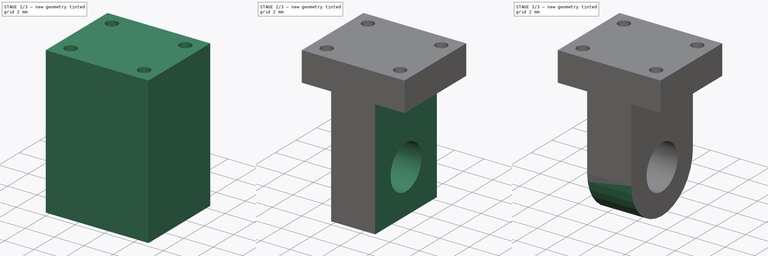
[diagram: build sequence overview — one tinted view per stage of 3, left to right]
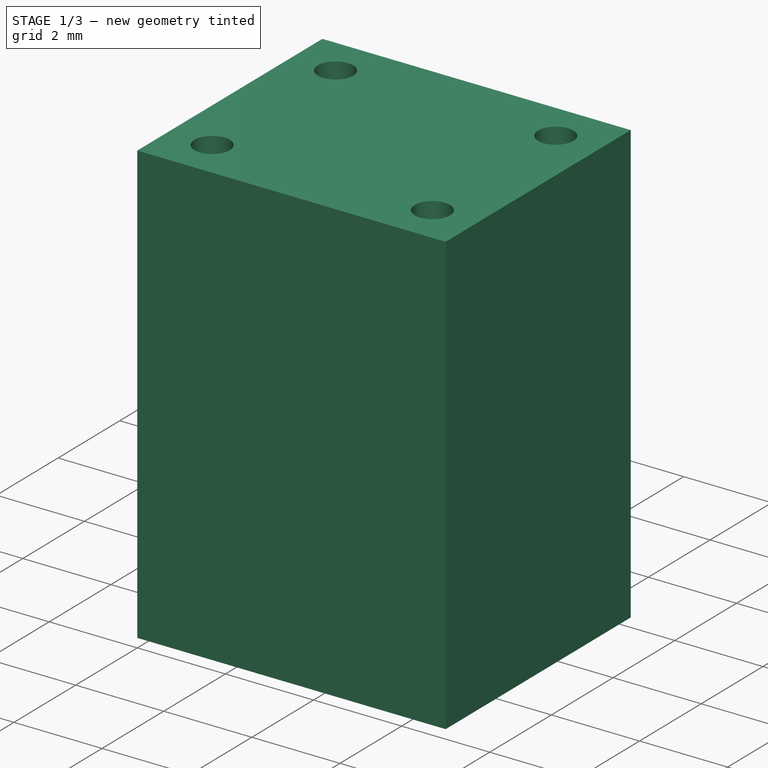
[diagram: stage 1 of 3 — iso view after this stage's code; geometry added in this stage tinted green]
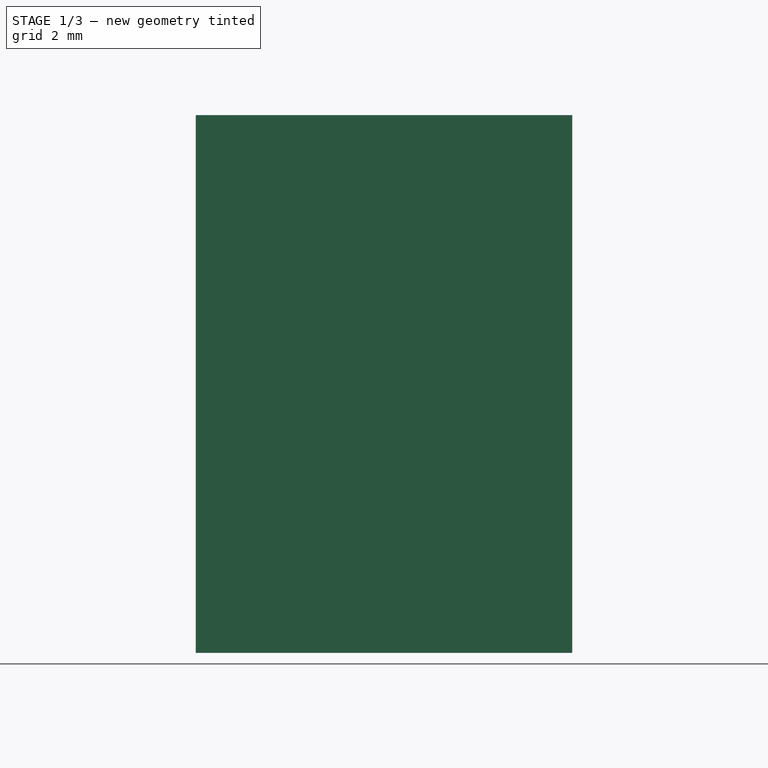
[diagram: stage 1 of 3 — front view after this stage's code; geometry added in this stage tinted green]
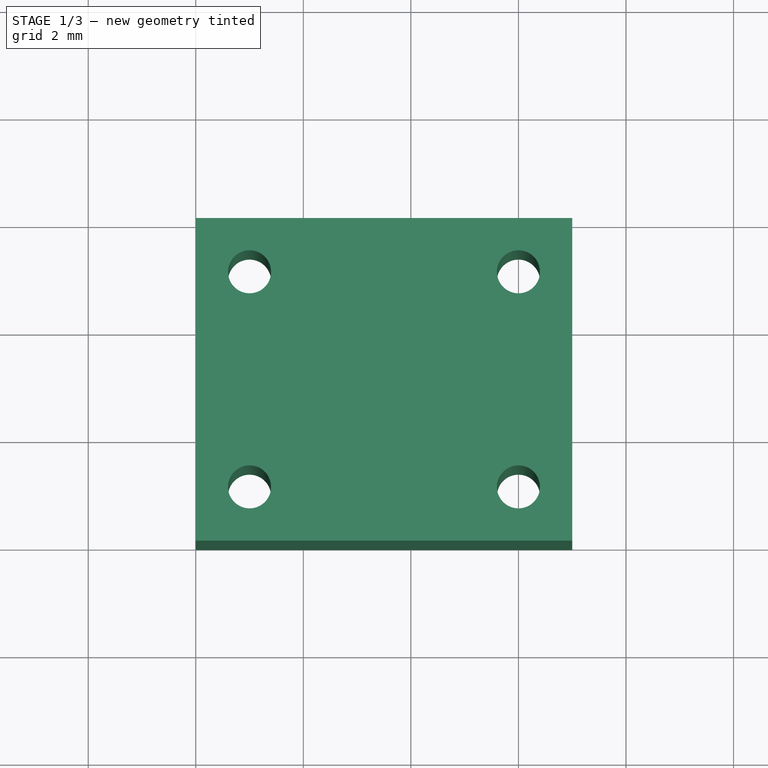
[diagram: stage 1 of 3 — top view after this stage's code; geometry added in this stage tinted green]
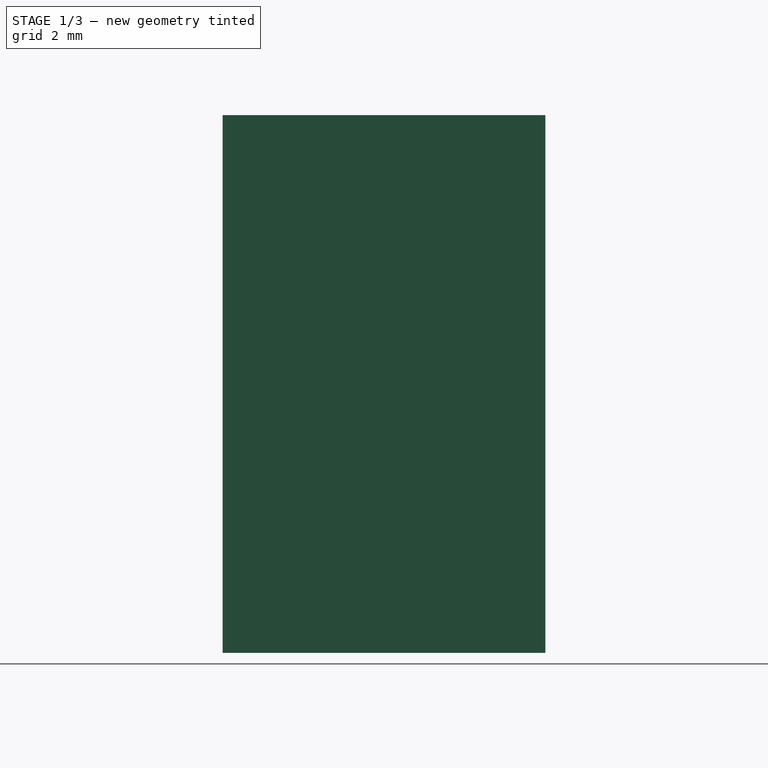
[diagram: stage 1 of 3 — right view after this stage's code; geometry added in this stage tinted green]
FCSTD DOCUMENT  (FreeCAD 0.17R13528 (Git))
Label: kupplungsstück
License: All rights reserved
LicenseURL: http://en.wikipedia.org/wiki/All_rights_reserved
objects: Sketcher::SketchObject×4, PartDesign::Pocket×4, PartDesign::SubtractiveBox×2, PartDesign::AdditiveBox×1, PartDesign::Body×1
note: 19 computed .brp shape members not serialized (recipe doc carries the construction recipe); baked Part::Feature solids carry a one-line shape summary decoded from their .brp

FEATURE [PartDesign::AdditiveBox] Box
  AttacherType = Attacher::AttachEngine3D
  Height = 10
  Length = 7
  MapMode = 5
  Support = -> [XY_Plane]
  Width = 6
FEATURE [Sketcher::SketchObject] Sketch
  MapMode = 5
  Placement = pos=(0,0,10) rot=(0,0,1;0rad)
  Support = -> [Box]
  sketch-geometry (4):
    g0: Circle CenterX=1 CenterY=1 CenterZ=0 NormalX=0 NormalY=0 NormalZ=1 AngleXU=0 Radius=0.4
    g1: Circle CenterX=1 CenterY=5 CenterZ=0 NormalX=0 NormalY=0 NormalZ=1 AngleXU=0 Radius=0.4
    g2: Circle CenterX=6 CenterY=1 CenterZ=0 NormalX=0 NormalY=0 NormalZ=1 AngleXU=0 Radius=0.4
    g3: Circle CenterX=6 CenterY=5 CenterZ=0 NormalX=0 NormalY=0 NormalZ=1 AngleXU=0 Radius=0.4
  constraints (12):
    c: Radius(g0) = 0.4
    c: DistanceX(g-1,g0) = 1
    c: DistanceY(g0,g-1) = -1
    c: Radius(g1) = 0.4
    c: DistanceX(g1,g-1) = -1
    c: DistanceY(g0,g1) = 4
    c: Radius(g2) = 0.4
    c: DistanceX(g0,g2) = 5
    c: DistanceY(g-1,g2) = 1
    c: Radius(g3) = 0.4
    c: DistanceY(g2,g3) = 4
    c: DistanceX(g1,g3) = 5
FEATURE [PartDesign::Pocket] Pocket
  BaseFeature = -> Box
  Length = 5
  Length2 = 100
  Profile = -> Sketch
  Type = 1
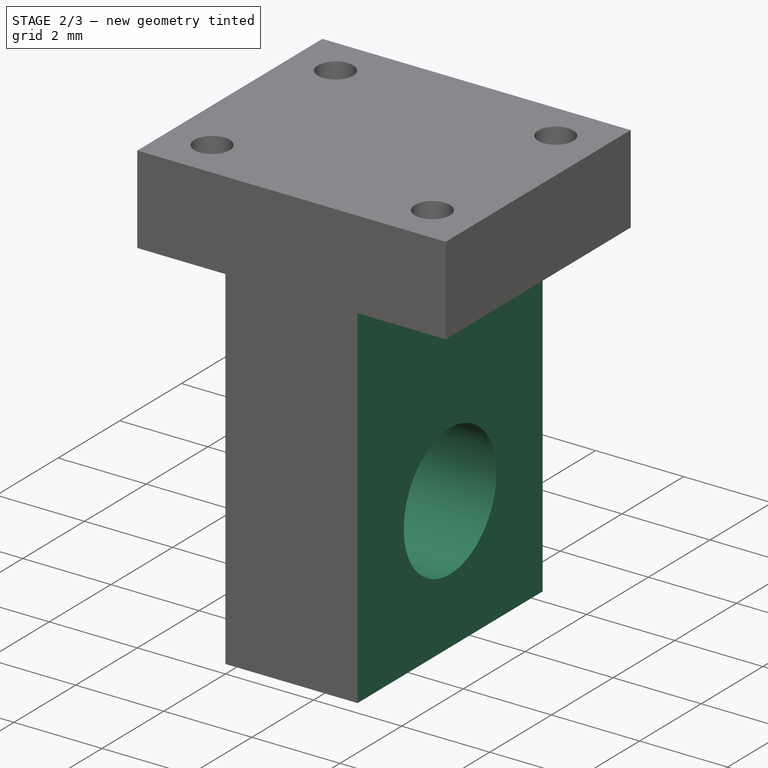
[diagram: stage 2 of 3 — iso view after this stage's code; geometry added in this stage tinted green]
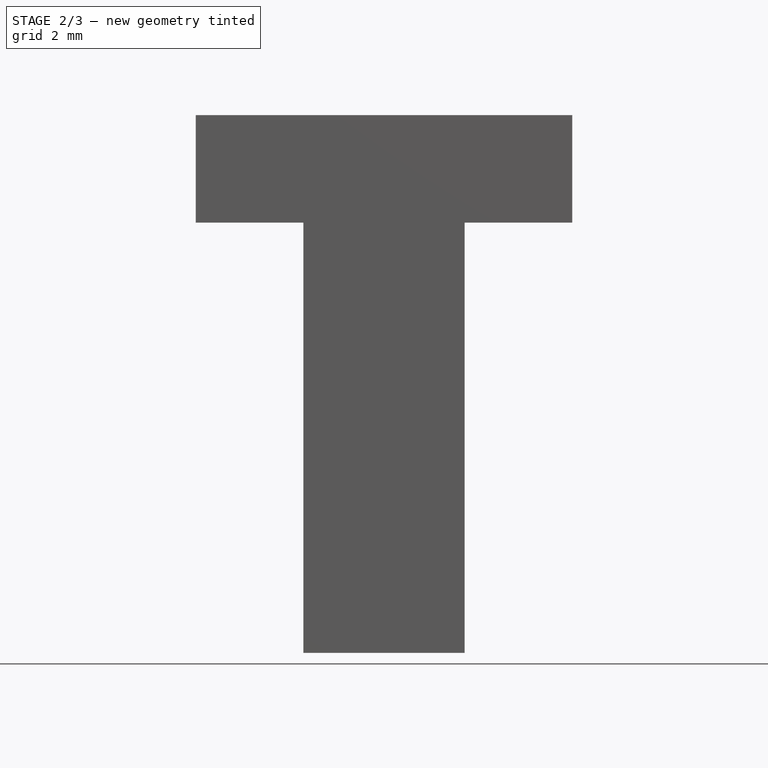
[diagram: stage 2 of 3 — front view after this stage's code; geometry added in this stage tinted green]
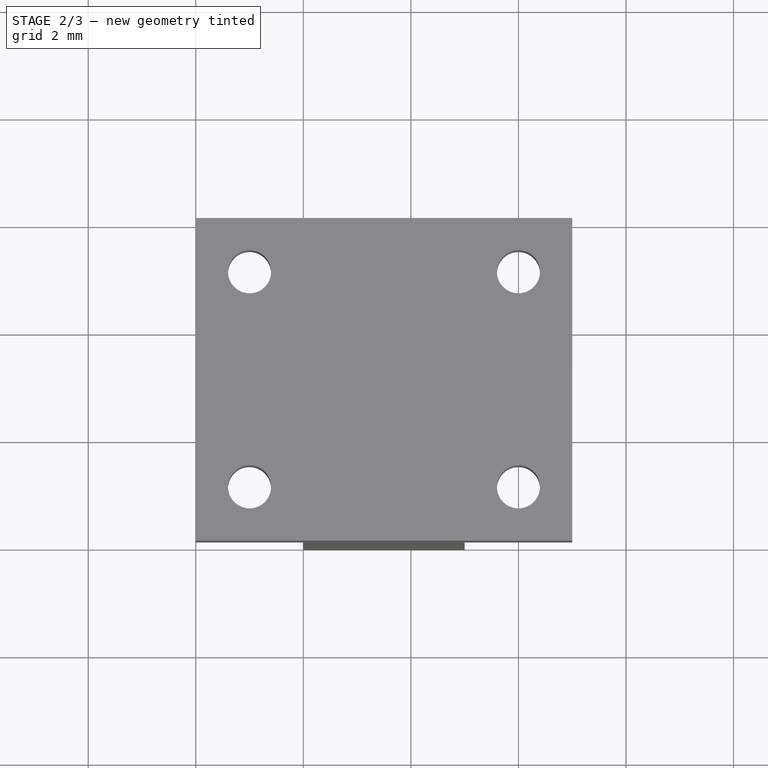
[diagram: stage 2 of 3 — top view after this stage's code; geometry added in this stage tinted green]
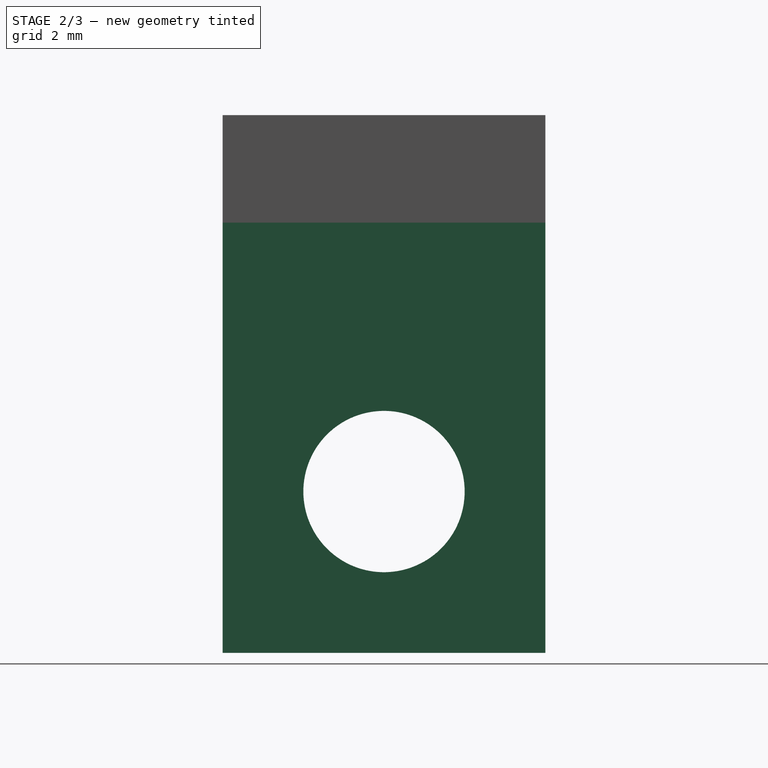
[diagram: stage 2 of 3 — right view after this stage's code; geometry added in this stage tinted green]
FEATURE [PartDesign::SubtractiveBox] Box001
  AttacherType = Attacher::AttachEngine3D
  BaseFeature = -> Pocket
  Height = 8
  Length = 2
  MapMode = 5
  Support = -> [XY_Plane]
  Width = 6
FEATURE [PartDesign::SubtractiveBox] Box002
  AttacherType = Attacher::AttachEngine3D
  AttachmentOffset = pos=(5,-6,-8) rot=(0,0,1;0rad)
  BaseFeature = -> Box001
  Height = 8
  Length = 2
  MapMode = 5
  Placement = pos=(5,6,8) rot=(1,0,0;3.14159rad)
  Support = -> [Box001]
  Width = 6
FEATURE [PartDesign::Pocket] Pocket001
  BaseFeature = -> Box002
  Length = 5
  Length2 = 100
  Placement = pos=(5,6,8) rot=(1,0,0;3.14159rad)
  Type = 1
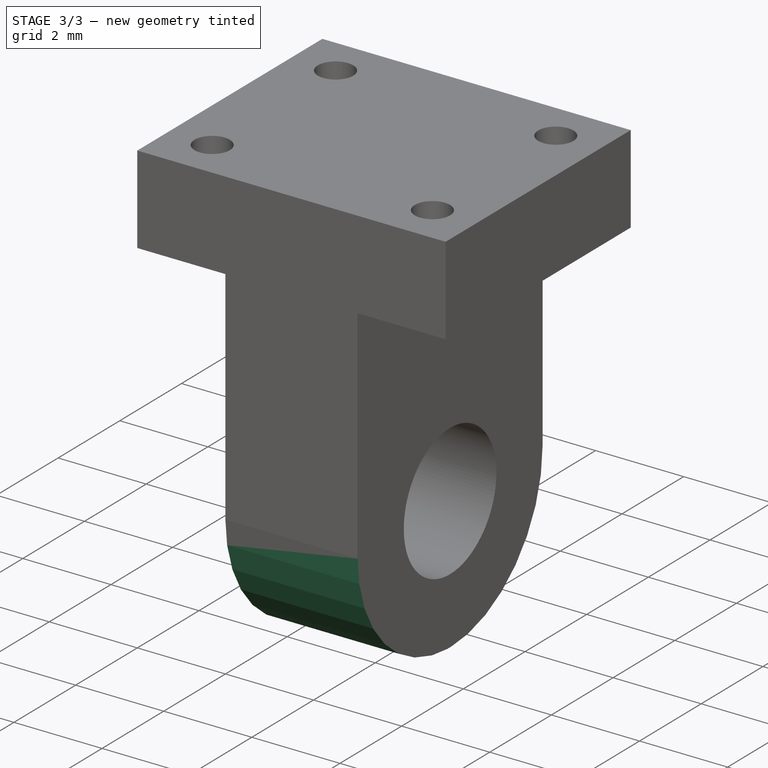
[diagram: stage 3 of 3 — iso view after this stage's code; geometry added in this stage tinted green]
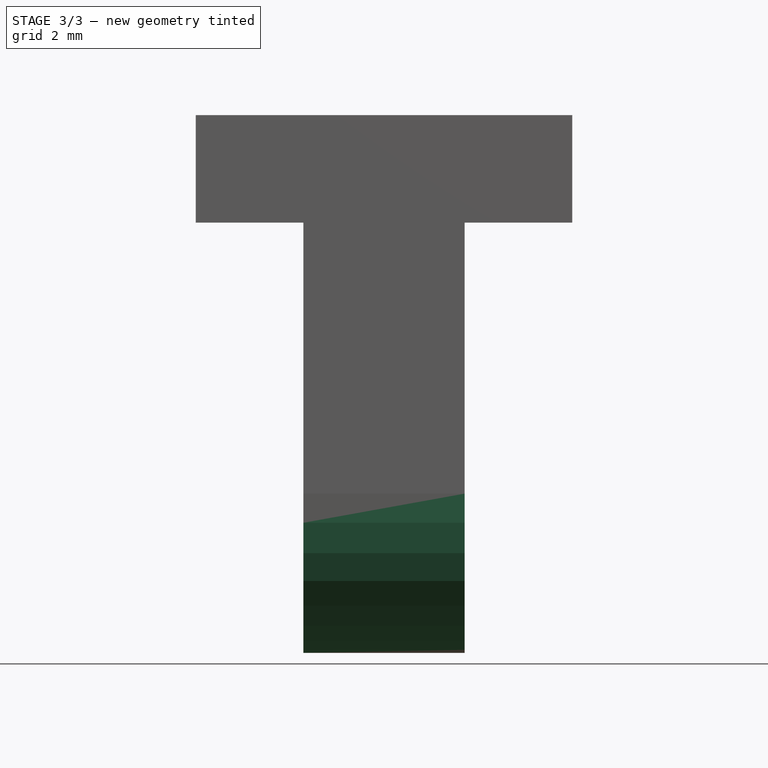
[diagram: stage 3 of 3 — front view after this stage's code; geometry added in this stage tinted green]
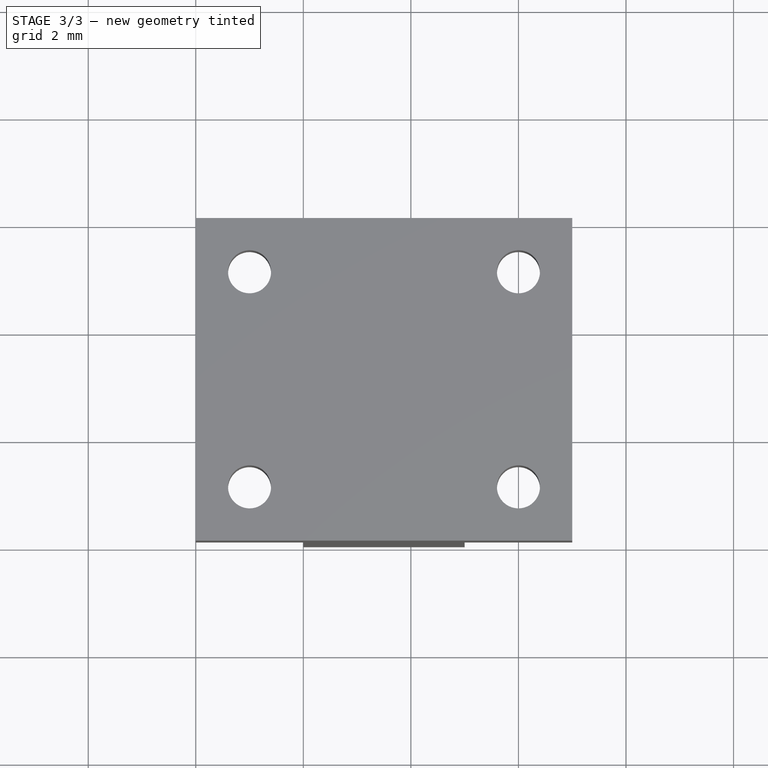
[diagram: stage 3 of 3 — top view after this stage's code; geometry added in this stage tinted green]
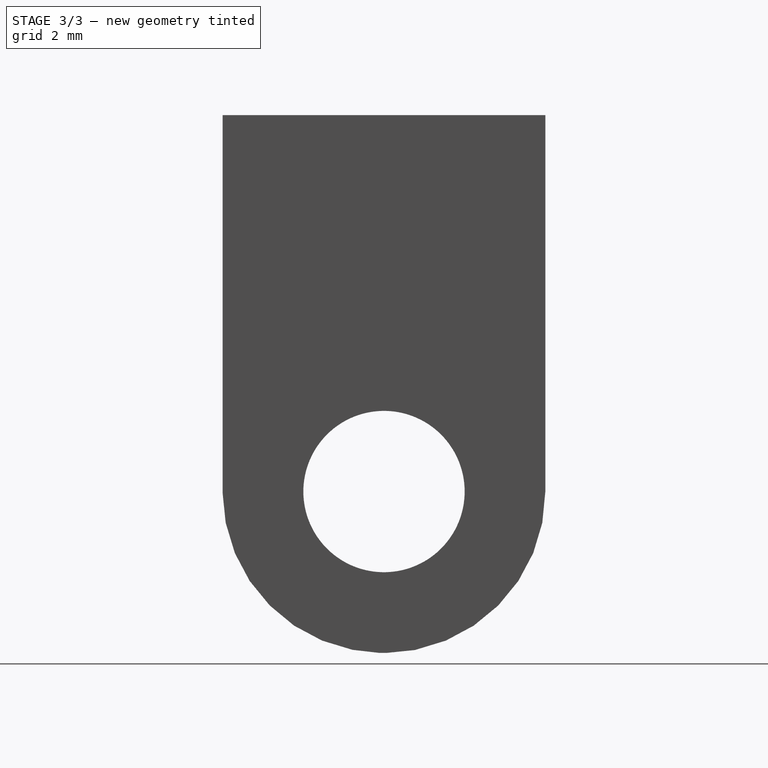
[diagram: stage 3 of 3 — right view after this stage's code; geometry added in this stage tinted green]
FEATURE [Sketcher::SketchObject] Sketch001
  MapMode = 4
  Placement = pos=(5,6,8) rot=(0.57735,-0.57735,0.57735;4.18879rad)
  Support = -> [Pocket001]
  sketch-geometry (6):
    g0: LineSegment StartX=0 StartY=4.5 StartZ=0 EndX=0 EndY=5 EndZ=0
    g1: ArcOfCircle CenterX=3 CenterY=5 CenterZ=0 NormalX=0 NormalY=0 NormalZ=1 AngleXU=0 Radius=3 StartAngle=0 EndAngle=3.14159
    g2: LineSegment StartX=6 StartY=5 StartZ=0 EndX=6 EndY=4.5 EndZ=0
    g3: LineSegment StartX=6 StartY=4.5 StartZ=0 EndX=6 EndY=8 EndZ=0
    g4: LineSegment StartX=6 StartY=8 StartZ=0 EndX=0 EndY=8 EndZ=0
    g5: LineSegment StartX=0 StartY=8 StartZ=0 EndX=0 EndY=4.5 EndZ=0
  constraints (18):
    c: Vertical(g0)
    c: Tangent(g0,g1) = 1.5708
    c: Coincident(g1,g2)
    c: Vertical(g2)
    c: Coincident(g2,g3)
    c: Vertical(g3)
    c: Coincident(g3,g4)
    c: Horizontal(g4)
    c: Coincident(g4,g5)
    c: Coincident(g5,g0)
    c: Vertical(g5)
    c: Radius(g1) = 3
    c: DistanceY(g-1,g1) = 5
    c: DistanceX(g-1,g1) = 3
    c: DistanceY(g-1,g3) = 8
    c: DistanceY(g-1,g2) = 4.5
    c: DistanceY(g-1,g0) = 4.5
    c: DistanceY(g-1,g1) = 5
FEATURE [Sketcher::SketchObject] Sketch002
  MapMode = 2
  Placement = pos=(5,6,8) rot=(0.57735,-0.57735,0.57735;4.18879rad)
  Support = -> [Sketch001]
  sketch-geometry (11):
    g0: LineSegment StartX=6.00359 StartY=5.0908 StartZ=0 EndX=6.00359 EndY=8.00411 EndZ=0
    g1: LineSegment StartX=6.00359 StartY=8.00411 StartZ=0 EndX=3.05328 EndY=8.00411 EndZ=0
    g2: LineSegment StartX=3.05328 StartY=8.00411 StartZ=0 EndX=3.58812 EndY=7.94254 EndZ=0
    g3: LineSegment StartX=3.58812 StartY=7.94254 StartZ=0 EndX=4.15254 EndY=7.77106 EndZ=0
    g4: LineSegment StartX=4.15254 StartY=7.77106 StartZ=0 EndX=4.67185 EndY=7.49343 EndZ=0
    g5: LineSegment StartX=4.67185 StartY=7.49343 StartZ=0 EndX=5.12496 EndY=7.11867 EndZ=0
    g6: LineSegment StartX=5.12496 StartY=7.11867 StartZ=0 EndX=5.49748 EndY=6.6634 EndZ=0
    g7: LineSegment StartX=5.49748 StartY=6.6634 StartZ=0 EndX=5.77341 EndY=6.14483 EndZ=0
    g8: LineSegment StartX=5.77341 StartY=6.14483 StartZ=0 EndX=5.94414 EndY=5.58079 EndZ=0
    g9: LineSegment StartX=5.94414 StartY=5.58079 StartZ=0 EndX=6.00359 EndY=5.00399 EndZ=0
    g10: LineSegment StartX=6.00359 StartY=5.00399 StartZ=0 EndX=6.00359 EndY=5.0908 EndZ=0
  constraints (14):
    c: Vertical(g0)
    c: Coincident(g0,g1)
    c: Horizontal(g1)
    c: Coincident(g1,g2)
    c: Coincident(g2,g3)
    c: Coincident(g3,g4)
    c: Coincident(g4,g5)
    c: Coincident(g5,g6)
    c: Coincident(g6,g7)
    c: Coincident(g7,g8)
    c: Coincident(g8,g9)
    c: Coincident(g9,g10)
    c: Coincident(g10,g0)
    c: Vertical(g10)
FEATURE [PartDesign::Pocket] Pocket002
  BaseFeature = -> Pocket001
  Length = 5
  Length2 = 100
  Placement = pos=(5,6,8) rot=(1,0,0;3.14159rad)
  Profile = -> Sketch002
  Type = 0
FEATURE [Sketcher::SketchObject] Sketch003
  MapMode = 4
  Placement = pos=(5,6,8) rot=(0.57735,-0.57735,0.57735;4.18879rad)
  Support = -> [Pocket002]
  sketch-geometry (11):
    g0: LineSegment StartX=0 StartY=4.99875 StartZ=0 EndX=0 EndY=8.00288 EndZ=0
    g1: LineSegment StartX=0 StartY=8.00288 StartZ=0 EndX=2.97574 EndY=8.00288 EndZ=0
    g2: LineSegment StartX=2.97574 StartY=8.00288 StartZ=0 EndX=2.42359 EndY=7.94661 EndZ=0
    g3: LineSegment StartX=2.42359 StartY=7.94661 StartZ=0 EndX=1.84831 EndY=7.77131 EndZ=0
    g4: LineSegment StartX=1.84831 StartY=7.77131 StartZ=0 EndX=1.33156 EndY=7.49378 EndZ=0
    g5: LineSegment StartX=1.33156 StartY=7.49378 StartZ=0 EndX=0.875922 EndY=7.11941 EndZ=0
    g6: LineSegment StartX=0.875922 StartY=7.11941 StartZ=0 EndX=0.50251 EndY=6.66361 EndZ=0
    g7: LineSegment StartX=0.50251 StartY=6.66361 StartZ=0 EndX=0.224422 EndY=6.14281 EndZ=0
    g8: LineSegment StartX=0.224422 StartY=6.14281 StartZ=0 EndX=0.056365 EndY=5.58237 EndZ=0
    g9: LineSegment StartX=0.056365 StartY=5.58237 StartZ=0 EndX=0 EndY=5.00082 EndZ=0
    g10: LineSegment StartX=0 StartY=5.00082 StartZ=0 EndX=0 EndY=4.99875 EndZ=0
  constraints (15):
    c: PointOnObject(g0,g-2)
    c: Vertical(g0)
    c: Coincident(g0,g1)
    c: Horizontal(g1)
    c: Coincident(g1,g2)
    c: Coincident(g2,g3)
    c: Coincident(g3,g4)
    c: Coincident(g4,g5)
    c: Coincident(g5,g6)
    c: Coincident(g6,g7)
    c: Coincident(g7,g8)
    c: Coincident(g8,g9)
    c: Coincident(g9,g10)
    c: Coincident(g10,g0)
    c: Vertical(g10)
FEATURE [PartDesign::Pocket] Pocket003
  BaseFeature = -> Pocket002
  Length = 5
  Length2 = 100
  Placement = pos=(5,6,8) rot=(1,0,0;3.14159rad)
  Profile = -> Sketch003
  Type = 0
FEATURE [PartDesign::Body] Body
  Group = -> [Box,Sketch,Pocket,Box001,Box002,Pocket001,Sketch001,Sketch002,Pocket002,Sketch003,Pocket003]
  Origin = -> Origin
  Tip = -> Pocket003
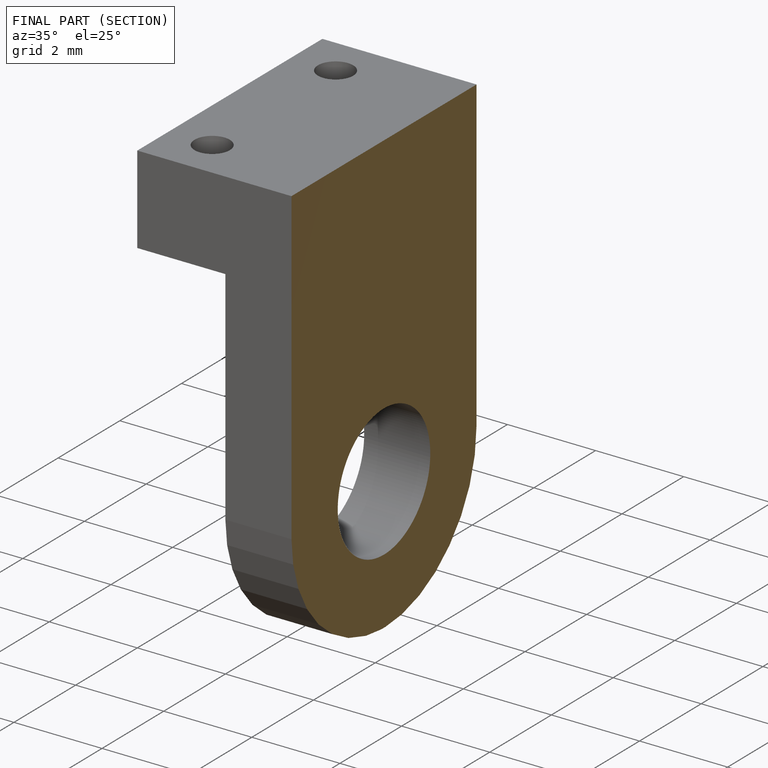
[diagram: finished part — half-section view (interior)]
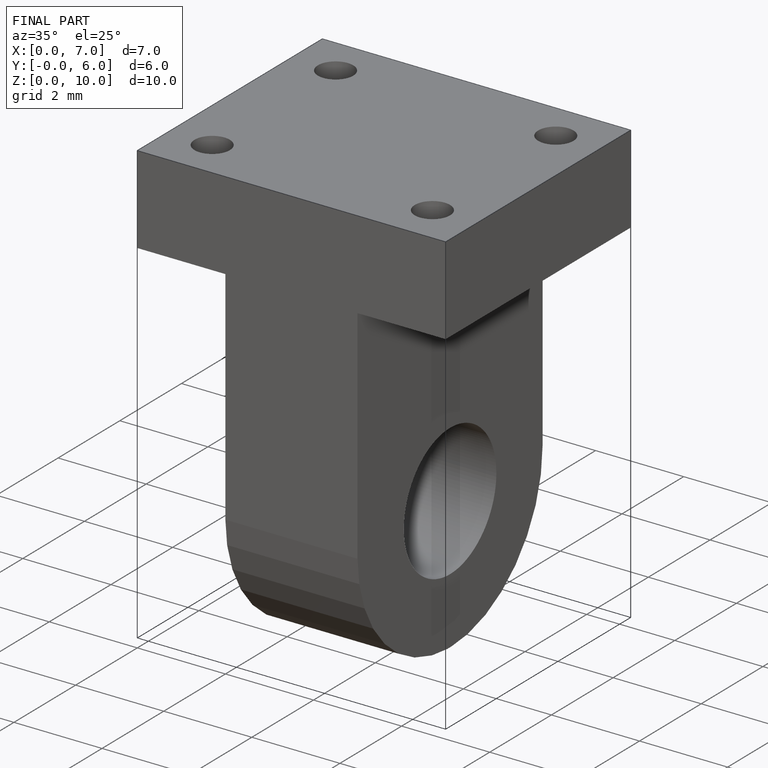
[diagram: finished part — iso view with bounding-box wireframe]
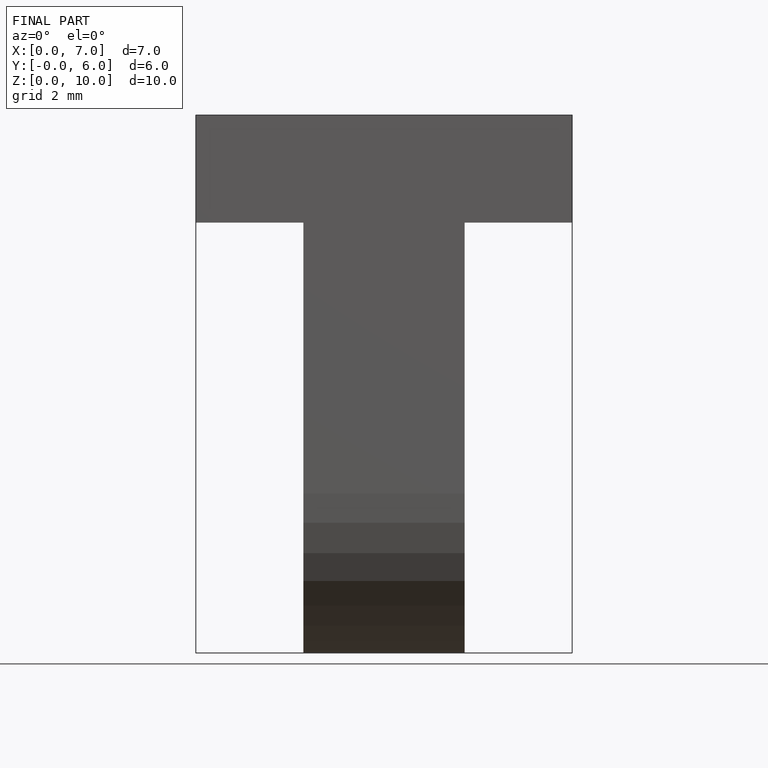
[diagram: finished part — front view with bounding-box wireframe]
